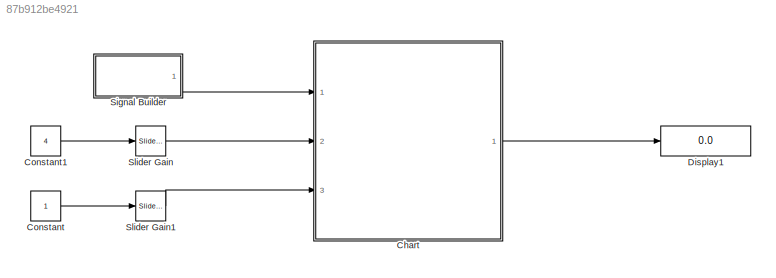
MODEL slx_87b912be4921
KIND model
CONFIG AbsTol = auto
CONFIG EnableMultiTasking = off
CONFIG FixedStep = auto
CONFIG MaxStep = auto
CONFIG MinStep = auto
CONFIG RelTol = 1e-3
CONFIG SampleTimeConstraint = Unconstrained
CONFIG SolverName = VariableStepAuto
CONFIG StartTime = 0.0
CONFIG StopTime = 10.0
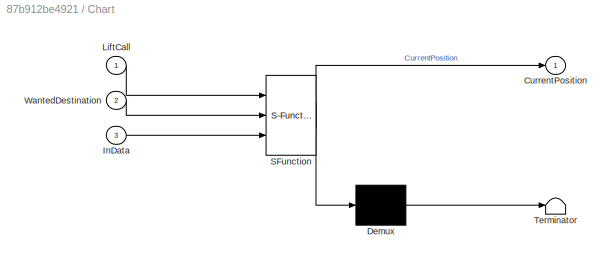
BLOCK [SubSystem] Chart
  ErrorFcn = Stateflow.Translate.translate
  PermitHierarchicalResolution = ExplicitOnly
  Ports = [3, 1]
  RequestExecContextInheritance = off
  SFBlockType = Chart
  TreatAsAtomicUnit = on
BLOCK [Demux] Chart/ Demux 
  Outputs = 1
  Ports = [1, 1]
BLOCK [S-Function] Chart/ SFunction 
  EnableBusSupport = on
  FunctionName = sf_sfun
  PortCounts = [3 2]
  Ports = [3, 2]
  SFcnIsStateOwnerBlock = off
  SFunctionDeploymentMode = off
  Tag = Stateflow S-Function 3
BLOCK [Terminator] Chart/ Terminator 
BLOCK [Outport] Chart/CurrentPosition
BLOCK [Inport] Chart/InData
  Port = 3
BLOCK [Inport] Chart/LiftCall
BLOCK [Inport] Chart/WantedDestination
  Port = 2
BLOCK [Constant] Constant
BLOCK [Constant] Constant1
  Value = 4
BLOCK [Display] Display1
  Decimation = 1
  Ports = [1]
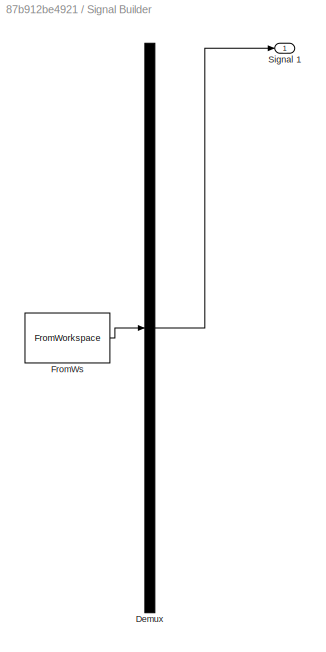
BLOCK [SubSystem] Signal Builder
  ClipboardFcn = sigbuilder_block('clipboard');
  CloseFcn = sigbuilder_block('close');
  ContinueFcn = sigbuilder_block('continue');
  CopyFcn = sigbuilder_block('copy');
  DeleteFcn = sigbuilder_block('delete');
  LoadFcn = sigbuilder_block('load');
  MaskHideContents = on
  ModelCloseFcn = sigbuilder_block('modelClose');
  NameChangeFcn = sigbuilder_block('namechange');
  OpenFcn = sigbuilder_block('open',[437.6 199.2 550.4 400 ]);
  PauseFcn = sigbuilder_block('pause');
  Ports = [0, 1]
  PreSaveFcn = sigbuilder_block('preSave');
  RequestExecContextInheritance = off
  StartFcn = sigbuilder_block('start');
  StopFcn = sigbuilder_block('stop');
  Tag = STV Subsys
BLOCK [Demux] Signal Builder/Demux
  DisplayOption = none
  Outputs = 1
  Ports = [1, 1]
  Tag = STV Demux
BLOCK [FromWorkspace] Signal Builder/FromWs
  Tag = STV FromWs
  VariableName = tuvar
BLOCK [Outport] Signal Builder/Signal 1
  Tag = STV Outport
BLOCK [Reference] Slider Gain  REF=simulink/Math
Operations/Slider
Gain
  Ports = [1, 1]
  SourceBlock = simulink/Math\nOperations/Slider\nGain
  SourceProductBaseCode = SL
  SourceType = Slider Gain
BLOCK [Reference] Slider Gain1  REF=simulink/Math
Operations/Slider
Gain
  Ports = [1, 1]
  SourceBlock = simulink/Math\nOperations/Slider\nGain
  SourceProductBaseCode = SL
  SourceType = Slider Gain
LINE Chart:1 -> Display1:1
LINE Constant1:1 -> Slider Gain:1
LINE Constant:1 -> Slider Gain1:1
LINE Signal Builder:1 -> Chart:1
LINE Slider Gain1:1 -> Chart:3
LINE Slider Gain:1 -> Chart:2
CHART Chart states=15 transitions=20
  STATE_LABEL 'Stopped'
  STATE_LABEL 'Stopped_and_Waiting'
  STATE_LABEL 'Initializing\nentry: Motor = false; BrakesOff = false; Doors = false;\n DestinationReached = false; CommandConsidered = false;'
  STATE_LABEL 'FixingDestination\nLastDestination = WantedDestination;\nCurrentPosition = InData;'
  STATE_LABEL 'SettingDown\nentry: Up = false;'
  STATE_LABEL 'SettingUp\nentry: Up = true'
  STATE_LABEL 'CommandAccepted\nCommandConsidered = true;'
  STATE_LABEL '[~LiftCall && ~CommandConsidered]'
  STATE_LABEL '[LiftCall]'
  STATE_LABEL '[CurrentPosition < LastDestination]'
  STATE_LABEL '[CurrentPosition > LastDestination]'
  STATE_LABEL 'Stopped_at_Destination'
  STATE_LABEL 'StoppingLift\nentry: Motor = false;\n BrakesOff = false;'
  STATE_LABEL 'ErrorState\nentry: Doors = false;'
  STATE_LABEL 'OpeningDoors\nentry: DestinationReached = true; Doors = true'
  STATE_LABEL '[CurrentPosition ~= LastDestination]'
  STATE_LABEL '[CurrentPosition == LastDestination]'
  STATE_LABEL '[Doors]'
  STATE_LABEL '[CurrentPosition == LastDestination]'
  STATE_LABEL 'Stopped_and_Waiting'
  STATE_LABEL 'Initializing\nentry: Motor = false; BrakesOff = false; Doors = false;\n DestinationReached = false; CommandConsidered = false;'
  STATE_LABEL 'FixingDestination\nLastDestination = WantedDestination;\nCurrentPosition = InData;'
  STATE_LABEL 'SettingDown\nentry: Up = false;'
  STATE_LABEL 'SettingUp\nentry: Up = true'
  STATE_LABEL 'CommandAccepted\nCommandConsidered = true;'
  STATE_LABEL '[~LiftCall && ~CommandConsidered]'
  STATE_LABEL '[LiftCall]'
  STATE_LABEL '[CurrentPosition < LastDestination]'
  STATE_LABEL '[CurrentPosition > LastDestination]'
  STATE_LABEL 'Initializing\nentry: Motor = false; BrakesOff = false; Doors = false;\n DestinationReached = false; CommandConsidered = false;'
  STATE_LABEL 'FixingDestination\nLastDestination = WantedDestination;\nCurrentPosition = InData;'
  STATE_LABEL 'SettingDown\nentry: Up = false;'
  STATE_LABEL 'SettingUp\nentry: Up = true'
  STATE_LABEL 'CommandAccepted\nCommandConsidered = true;'
  STATE_LABEL 'Stopped_at_Destination'
  STATE_LABEL 'StoppingLift\nentry: Motor = false;\n BrakesOff = false;'
  STATE_LABEL 'ErrorState\nentry: Doors = false;'
  STATE_LABEL 'OpeningDoors\nentry: DestinationReached = true; Doors = true'
  STATE_LABEL '[CurrentPosition ~= LastDestination]'
  STATE_LABEL '[CurrentPosition == LastDestination]'
CHART  states=0 transitions=0
